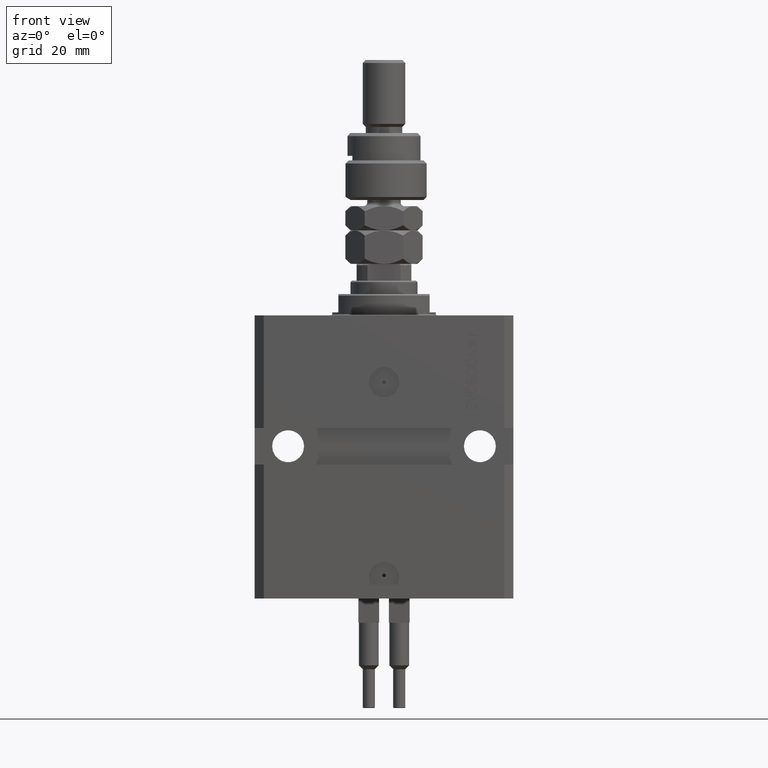
[diagram: clean part render]
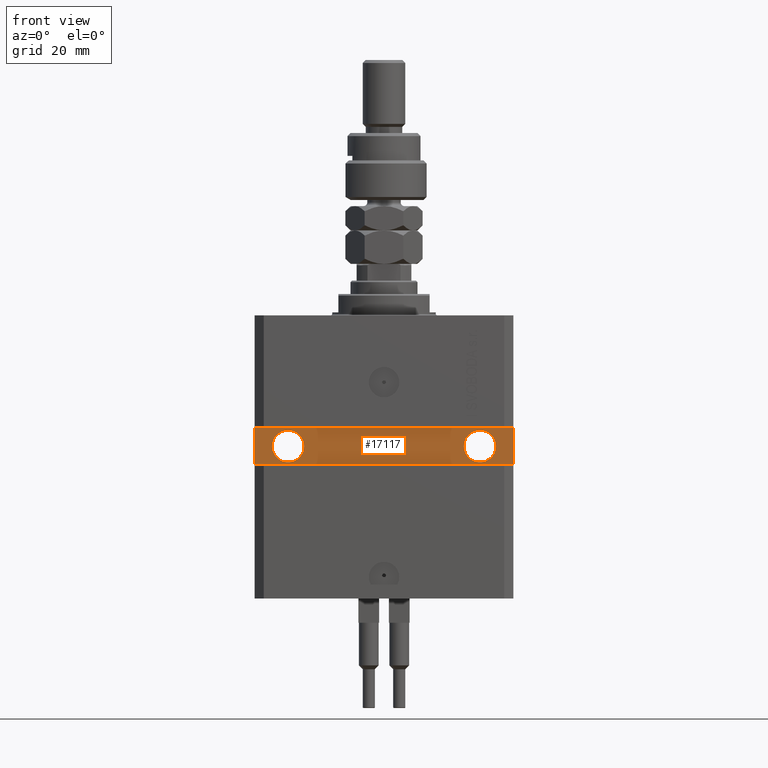
[diagram: same view with one face highlighted and labeled with its STEP entity id]
A machine part, front view. The second image highlights one B-rep face of the part: STEP entity #17117.
In plain terms, the highlighted planar face has unit normal (0, -1, 0).
Its self-contained STEP definition (entity closure, byte-faithful):
#297 = LINE ( 'NONE', #31168, #15911 ) ;
#528 = EDGE_LOOP ( 'NONE', ( #20745, #32268 ) ) ;
#677 = CARTESIAN_POINT ( 'NONE',  ( -31.49999999999998579, -28.50000000000000355, -43.00000000000000000 ) ) ;
#1803 = FACE_OUTER_BOUND ( 'NONE', #7539, .T. ) ;
#2470 = DIRECTION ( 'NONE',  ( 1.101411730780568590E-16, -1.000000000000000000, 0.000000000000000000 ) ) ;
#2963 = LINE ( 'NONE', #6589, #22557 ) ;
#3367 = CARTESIAN_POINT ( 'NONE',  ( 42.50000000000001421, -28.49999999999999289, -36.99999999999998579 ) ) ;
#3925 = EDGE_CURVE ( 'NONE', #49143, #34882, #43899, .T. ) ;
#4627 = ORIENTED_EDGE ( 'NONE', *, *, #27539, .F. ) ;
#6589 = CARTESIAN_POINT ( 'NONE',  ( 42.50000000000001421, -28.49999999999999289, -36.99999999999998579 ) ) ;
#7539 = EDGE_LOOP ( 'NONE', ( #47338, #28616, #11153, #24924 ) ) ;
#8280 = ORIENTED_EDGE ( 'NONE', *, *, #3925, .F. ) ;
#8311 = EDGE_CURVE ( 'NONE', #20081, #42030, #30409, .T. ) ;
#9185 = EDGE_CURVE ( 'NONE', #50532, #39751, #2963, .T. ) ;
#11153 = ORIENTED_EDGE ( 'NONE', *, *, #9185, .T. ) ;
#12906 = CARTESIAN_POINT ( 'NONE',  ( 36.75000000000001421, -28.49999999999999645, -43.00000000000000000 ) ) ;
#13564 = CIRCLE ( 'NONE', #29345, 5.249999999999997335 ) ;
#14419 = EDGE_CURVE ( 'NONE', #39751, #20081, #17836, .T. ) ;
#14466 = CARTESIAN_POINT ( 'NONE',  ( -42.50000000000000000, -28.50000000000000711, -37.00000000000000711 ) ) ;
#14562 = CARTESIAN_POINT ( 'NONE',  ( -42.50000000000000000, -28.50000000000000711, -48.99999999999999289 ) ) ;
#15834 = DIRECTION ( 'NONE',  ( 0.000000000000000000, 0.000000000000000000, 1.000000000000000000 ) ) ;
#15911 = VECTOR ( 'NONE', #15834, 1000.000000000000000 ) ;
#17117 = ADVANCED_FACE ( 'NONE', ( #32920, #37313, #1803 ), #45351, .T. ) ;
#17593 = DIRECTION ( 'NONE',  ( 1.632680918566406300E-16, -1.000000000000000000, 0.000000000000000000 ) ) ;
#17836 = LINE ( 'NONE', #14466, #27627 ) ;
#19247 = DIRECTION ( 'NONE',  ( 1.000000000000000000, 0.000000000000000000, 0.000000000000000000 ) ) ;
#20081 = VERTEX_POINT ( 'NONE', #34912 ) ;
#20745 = ORIENTED_EDGE ( 'NONE', *, *, #50854, .F. ) ;
#20969 = DIRECTION ( 'NONE',  ( 1.000000000000000000, 1.632680918566406300E-16, 0.000000000000000000 ) ) ;
#21122 = DIRECTION ( 'NONE',  ( 1.101411730780568590E-16, -1.000000000000000000, 0.000000000000000000 ) ) ;
#22557 = VECTOR ( 'NONE', #22912, 1000.000000000000000 ) ;
#22912 = DIRECTION ( 'NONE',  ( -1.000000000000000000, -1.632680918566406300E-16, -2.449021377849609204E-16 ) ) ;
#22933 = AXIS2_PLACEMENT_3D ( 'NONE', #30215, #2470, #41877 ) ;
#23439 = CARTESIAN_POINT ( 'NONE',  ( 42.50000000000001421, -28.49999999999999289, -48.99999999999999289 ) ) ;
#24263 = DIRECTION ( 'NONE',  ( 1.000000000000000000, 0.000000000000000000, 0.000000000000000000 ) ) ;
#24416 = CARTESIAN_POINT ( 'NONE',  ( 31.50000000000001421, -28.49999999999999645, -43.00000000000000000 ) ) ;
#24924 = ORIENTED_EDGE ( 'NONE', *, *, #14419, .T. ) ;
#25906 = DIRECTION ( 'NONE',  ( 0.000000000000000000, 0.000000000000000000, -1.000000000000000000 ) ) ;
#27539 = EDGE_CURVE ( 'NONE', #34882, #49143, #50107, .T. ) ;
#27627 = VECTOR ( 'NONE', #25906, 1000.000000000000000 ) ;
#27698 = AXIS2_PLACEMENT_3D ( 'NONE', #40949, #17593, #20969 ) ;
#27900 = CIRCLE ( 'NONE', #22933, 5.249999999999997335 ) ;
#28616 = ORIENTED_EDGE ( 'NONE', *, *, #50162, .T. ) ;
#28726 = DIRECTION ( 'NONE',  ( 1.000000000000000000, 0.000000000000000000, 0.000000000000000000 ) ) ;
#29148 = VECTOR ( 'NONE', #42572, 1000.000000000000000 ) ;
#29345 = AXIS2_PLACEMENT_3D ( 'NONE', #677, #21122, #24263 ) ;
#30215 = CARTESIAN_POINT ( 'NONE',  ( -31.49999999999998579, -28.50000000000000355, -43.00000000000000000 ) ) ;
#30409 = LINE ( 'NONE', #14562, #29148 ) ;
#31168 = CARTESIAN_POINT ( 'NONE',  ( 42.50000000000001421, -28.49999999999999289, -48.99999999999999289 ) ) ;
#32268 = ORIENTED_EDGE ( 'NONE', *, *, #34296, .F. ) ;
#32920 = FACE_BOUND ( 'NONE', #46828, .T. ) ;
#33953 = AXIS2_PLACEMENT_3D ( 'NONE', #44271, #36234, #28726 ) ;
#34296 = EDGE_CURVE ( 'NONE', #36629, #42860, #27900, .T. ) ;
#34882 = VERTEX_POINT ( 'NONE', #12906 ) ;
#34912 = CARTESIAN_POINT ( 'NONE',  ( -42.50000000000000000, -28.50000000000000711, -48.99999999999999289 ) ) ;
#35192 = AXIS2_PLACEMENT_3D ( 'NONE', #24416, #35580, #19247 ) ;
#35580 = DIRECTION ( 'NONE',  ( 1.037025423586453699E-16, -1.000000000000000000, 1.848892746611746419E-32 ) ) ;
#36234 = DIRECTION ( 'NONE',  ( 1.037025423586453699E-16, -1.000000000000000000, 1.848892746611746419E-32 ) ) ;
#36629 = VERTEX_POINT ( 'NONE', #44561 ) ;
#37067 = CARTESIAN_POINT ( 'NONE',  ( 26.25000000000001776, -28.49999999999999645, -43.00000000000000000 ) ) ;
#37313 = FACE_BOUND ( 'NONE', #528, .T. ) ;
#39751 = VERTEX_POINT ( 'NONE', #45946 ) ;
#40949 = CARTESIAN_POINT ( 'NONE',  ( 4.790119779726142858E-15, -28.50000000000000000, 0.000000000000000000 ) ) ;
#41877 = DIRECTION ( 'NONE',  ( 1.000000000000000000, 0.000000000000000000, 0.000000000000000000 ) ) ;
#42030 = VERTEX_POINT ( 'NONE', #23439 ) ;
#42572 = DIRECTION ( 'NONE',  ( 1.000000000000000000, 1.632680918566406300E-16, 0.000000000000000000 ) ) ;
#42633 = CARTESIAN_POINT ( 'NONE',  ( -26.24999999999998934, -28.50000000000000355, -43.00000000000000000 ) ) ;
#42860 = VERTEX_POINT ( 'NONE', #42633 ) ;
#43899 = CIRCLE ( 'NONE', #33953, 5.249999999999997335 ) ;
#44271 = CARTESIAN_POINT ( 'NONE',  ( 31.50000000000001421, -28.49999999999999645, -43.00000000000000000 ) ) ;
#44561 = CARTESIAN_POINT ( 'NONE',  ( -36.74999999999998579, -28.50000000000000355, -43.00000000000000000 ) ) ;
#45351 = PLANE ( 'NONE',  #27698 ) ;
#45946 = CARTESIAN_POINT ( 'NONE',  ( -42.50000000000000000, -28.50000000000000711, -37.00000000000000711 ) ) ;
#46828 = EDGE_LOOP ( 'NONE', ( #4627, #8280 ) ) ;
#47338 = ORIENTED_EDGE ( 'NONE', *, *, #8311, .T. ) ;
#49143 = VERTEX_POINT ( 'NONE', #37067 ) ;
#50107 = CIRCLE ( 'NONE', #35192, 5.249999999999997335 ) ;
#50162 = EDGE_CURVE ( 'NONE', #42030, #50532, #297, .T. ) ;
#50532 = VERTEX_POINT ( 'NONE', #3367 ) ;
#50854 = EDGE_CURVE ( 'NONE', #42860, #36629, #13564, .T. ) ;